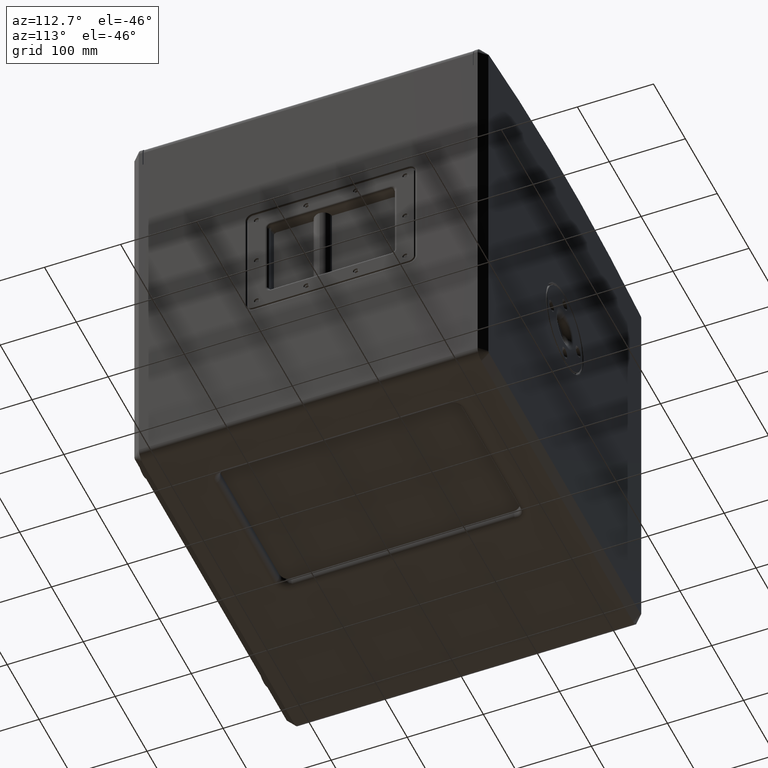
[diagram: clean part render]
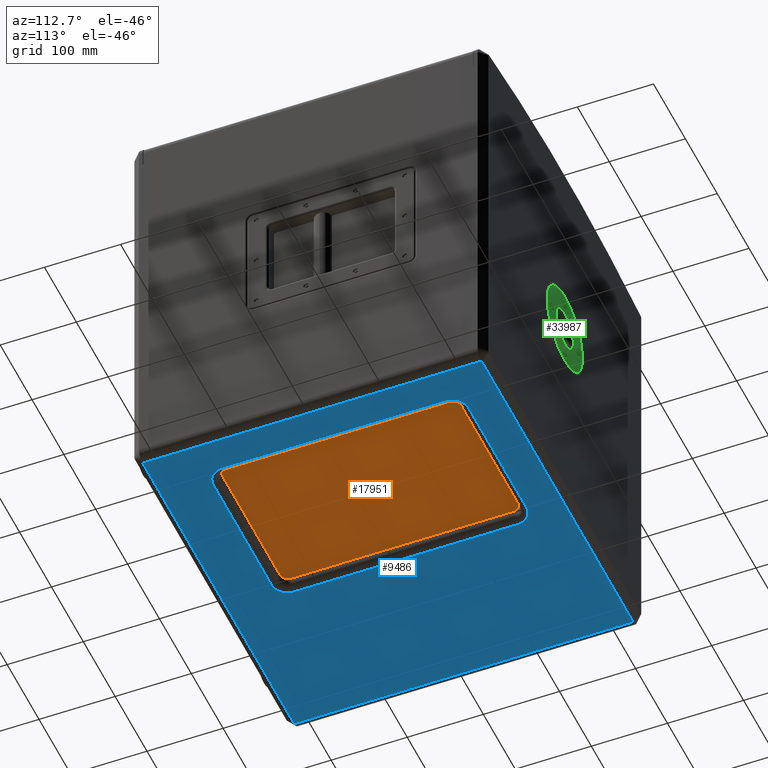
[diagram: same view with three faces highlighted in distinct colors, each labeled with its STEP entity id]
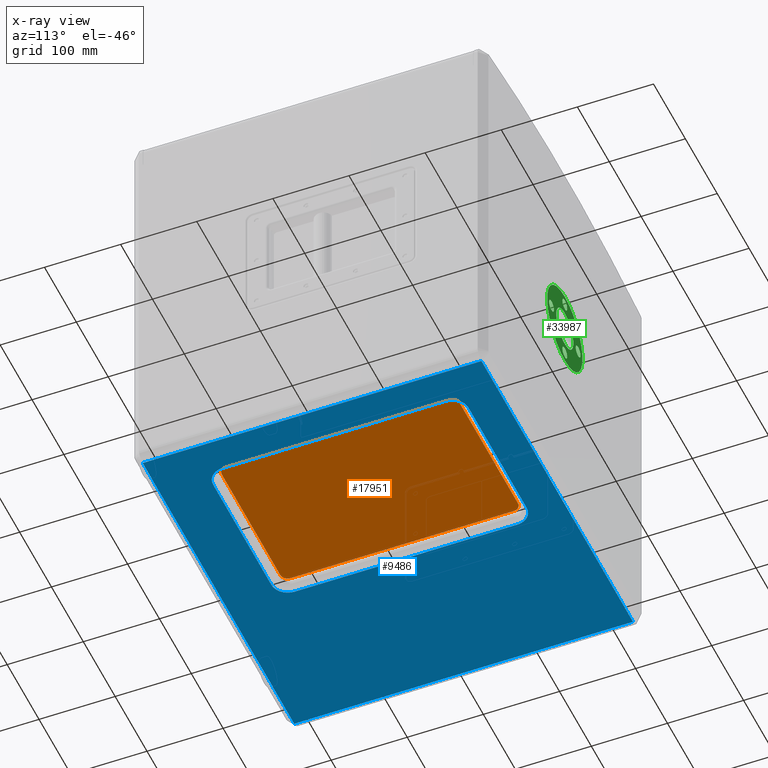
[diagram: x-ray of the same camera — body ghosted, the three highlighted faces saturated]
A machine part, auxiliary view with three faces highlighted in distinct colors.
The next image is the same camera in x-ray (body ghosted, the three faces saturated) — at least one of them is partly hidden behind the body in this view.
Their STEP definitions:

[orange] entity #17951 — the highlighted planar face has unit normal (-0, 0, -1).
#1145 = DIRECTION ( 'NONE',  ( 1.000000000000000000, 0.0000000000000000000, 0.0000000000000000000 ) ) ;
#1428 = AXIS2_PLACEMENT_3D ( 'NONE', #33297, #20532, #3899 ) ;
#3681 = CARTESIAN_POINT ( 'NONE',  ( 171.5000000000000000, 156.2500000000000000, -267.5000000000000000 ) ) ;
#3899 = DIRECTION ( 'NONE',  ( 1.000000000000000000, 0.0000000000000000000, 0.0000000000000000000 ) ) ;
#4521 = AXIS2_PLACEMENT_3D ( 'NONE', #3681, #23325, #36304 ) ;
#4782 = DIRECTION ( 'NONE',  ( 0.0000000000000000000, 0.0000000000000000000, 1.000000000000000000 ) ) ;
#5061 = DIRECTION ( 'NONE',  ( -1.000000000000000000, -0.0000000000000000000, -0.0000000000000000000 ) ) ;
#5260 = CARTESIAN_POINT ( 'NONE',  ( -21.50000000000001776, -136.2499999999999716, -267.5000000000000000 ) ) ;
#5874 = CIRCLE ( 'NONE', #4521, 10.00000000000000888 ) ;
#6078 = AXIS2_PLACEMENT_3D ( 'NONE', #34007, #4782, #25184 ) ;
#6406 = VERTEX_POINT ( 'NONE', #7238 ) ;
#7238 = CARTESIAN_POINT ( 'NONE',  ( 171.5000000000000284, -146.2500000000000000, -267.5000000000000000 ) ) ;
#8075 = LINE ( 'NONE', #8283, #26173 ) ;
#8283 = CARTESIAN_POINT ( 'NONE',  ( -11.50000000000005151, 166.2500000000000000, -267.5000000000000000 ) ) ;
#9828 = EDGE_CURVE ( 'NONE', #6406, #18560, #13819, .T. ) ;
#11342 = CARTESIAN_POINT ( 'NONE',  ( -21.50000000000006040, 156.2500000000000000, -267.5000000000000000 ) ) ;
#11411 = ORIENTED_EDGE ( 'NONE', *, *, #36583, .F. ) ;
#11650 = CIRCLE ( 'NONE', #1428, 10.00000000000000178 ) ;
#12267 = VERTEX_POINT ( 'NONE', #32658 ) ;
#13819 = CIRCLE ( 'NONE', #21954, 9.999999999999980460 ) ;
#14998 = EDGE_CURVE ( 'NONE', #34397, #15215, #21346, .T. ) ;
#15215 = VERTEX_POINT ( 'NONE', #5260 ) ;
#15945 = ORIENTED_EDGE ( 'NONE', *, *, #37341, .F. ) ;
#16144 = VERTEX_POINT ( 'NONE', #21932 ) ;
#16695 = ORIENTED_EDGE ( 'NONE', *, *, #19327, .F. ) ;
#16812 = VECTOR ( 'NONE', #23519, 1000.000000000000000 ) ;
#16907 = AXIS2_PLACEMENT_3D ( 'NONE', #41561, #31575, #38164 ) ;
#17829 = CARTESIAN_POINT ( 'NONE',  ( 181.5000000000000568, -136.2499999999999716, -267.5000000000000000 ) ) ;
#17951 = ADVANCED_FACE ( 'NONE', ( #35396 ), #26027, .T. ) ;
#18560 = VERTEX_POINT ( 'NONE', #17829 ) ;
#19134 = VECTOR ( 'NONE', #33656, 1000.000000000000000 ) ;
#19289 = VECTOR ( 'NONE', #41126, 1000.000000000000000 ) ;
#19327 = EDGE_CURVE ( 'NONE', #16144, #6406, #33442, .T. ) ;
#20532 = DIRECTION ( 'NONE',  ( 0.0000000000000000000, 0.0000000000000000000, 1.000000000000000000 ) ) ;
#20794 = EDGE_CURVE ( 'NONE', #18560, #12267, #26485, .T. ) ;
#21073 = CIRCLE ( 'NONE', #6078, 10.00000000000000178 ) ;
#21346 = LINE ( 'NONE', #11342, #19289 ) ;
#21932 = CARTESIAN_POINT ( 'NONE',  ( -11.50000000000003730, -146.2500000000000000, -267.5000000000000000 ) ) ;
#21954 = AXIS2_PLACEMENT_3D ( 'NONE', #30352, #39910, #1145 ) ;
#22609 = CARTESIAN_POINT ( 'NONE',  ( -11.50000000000005151, 166.2500000000000000, -267.5000000000000000 ) ) ;
#23325 = DIRECTION ( 'NONE',  ( 0.0000000000000000000, 0.0000000000000000000, 1.000000000000000000 ) ) ;
#23519 = DIRECTION ( 'NONE',  ( -1.423362852083534146E-16, 1.000000000000000000, -0.0000000000000000000 ) ) ;
#25184 = DIRECTION ( 'NONE',  ( 1.000000000000000000, 0.0000000000000000000, 0.0000000000000000000 ) ) ;
#26027 = PLANE ( 'NONE',  #16907 ) ;
#26173 = VECTOR ( 'NONE', #5061, 1000.000000000000000 ) ;
#26485 = LINE ( 'NONE', #39468, #16812 ) ;
#27237 = EDGE_CURVE ( 'NONE', #31481, #34397, #21073, .T. ) ;
#28423 = ORIENTED_EDGE ( 'NONE', *, *, #20794, .F. ) ;
#30352 = CARTESIAN_POINT ( 'NONE',  ( 171.5000000000000284, -136.2499999999999716, -267.5000000000000000 ) ) ;
#30841 = ORIENTED_EDGE ( 'NONE', *, *, #14998, .F. ) ;
#31481 = VERTEX_POINT ( 'NONE', #22609 ) ;
#31575 = DIRECTION ( 'NONE',  ( -0.0000000000000000000, 0.0000000000000000000, -1.000000000000000000 ) ) ;
#32658 = CARTESIAN_POINT ( 'NONE',  ( 181.4999999999999716, 156.2500000000000000, -267.5000000000000000 ) ) ;
#32787 = ORIENTED_EDGE ( 'NONE', *, *, #27237, .F. ) ;
#33297 = CARTESIAN_POINT ( 'NONE',  ( -11.50000000000002487, -136.2499999999999716, -267.5000000000000000 ) ) ;
#33442 = LINE ( 'NONE', #36859, #19134 ) ;
#33612 = ORIENTED_EDGE ( 'NONE', *, *, #35452, .F. ) ;
#33656 = DIRECTION ( 'NONE',  ( 1.000000000000000000, 0.0000000000000000000, 0.0000000000000000000 ) ) ;
#34007 = CARTESIAN_POINT ( 'NONE',  ( -11.50000000000006573, 156.2500000000000000, -267.5000000000000000 ) ) ;
#34397 = VERTEX_POINT ( 'NONE', #41958 ) ;
#35396 = FACE_OUTER_BOUND ( 'NONE', #35917, .T. ) ;
#35452 = EDGE_CURVE ( 'NONE', #37027, #31481, #8075, .T. ) ;
#35917 = EDGE_LOOP ( 'NONE', ( #11411, #28423, #37780, #16695, #15945, #30841, #32787, #33612 ) ) ;
#36304 = DIRECTION ( 'NONE',  ( -1.000000000000000000, 0.0000000000000000000, 0.0000000000000000000 ) ) ;
#36583 = EDGE_CURVE ( 'NONE', #12267, #37027, #5874, .T. ) ;
#36859 = CARTESIAN_POINT ( 'NONE',  ( -11.50000000000003730, -146.2500000000000000, -267.5000000000000000 ) ) ;
#37027 = VERTEX_POINT ( 'NONE', #38288 ) ;
#37341 = EDGE_CURVE ( 'NONE', #15215, #16144, #11650, .T. ) ;
#37780 = ORIENTED_EDGE ( 'NONE', *, *, #9828, .F. ) ;
#38164 = DIRECTION ( 'NONE',  ( -1.000000000000000000, 0.0000000000000000000, 0.0000000000000000000 ) ) ;
#38288 = CARTESIAN_POINT ( 'NONE',  ( 171.5000000000000000, 166.2500000000000000, -267.5000000000000000 ) ) ;
#39468 = CARTESIAN_POINT ( 'NONE',  ( 181.4999999999999716, 156.2500000000000000, -267.5000000000000000 ) ) ;
#39910 = DIRECTION ( 'NONE',  ( 0.0000000000000000000, 0.0000000000000000000, 1.000000000000000000 ) ) ;
#41126 = DIRECTION ( 'NONE',  ( 1.423362852083534146E-16, -1.000000000000000000, 0.0000000000000000000 ) ) ;
#41561 = CARTESIAN_POINT ( 'NONE',  ( 171.5000000000000000, 156.2500000000000000, -267.5000000000000000 ) ) ;
#41958 = CARTESIAN_POINT ( 'NONE',  ( -21.50000000000006040, 156.2500000000000000, -267.5000000000000000 ) ) ;

[blue] entity #9486 — the highlighted planar face has unit normal (0, 0, 1).
#33 = VECTOR ( 'NONE', #33356, 1000.000000000000000 ) ;
#43 = DIRECTION ( 'NONE',  ( -1.000000000000000000, 5.551115123125781470E-17, 0.0000000000000000000 ) ) ;
#665 = DIRECTION ( 'NONE',  ( -1.000000000000000000, -0.0000000000000000000, 0.0000000000000000000 ) ) ;
#819 = EDGE_CURVE ( 'NONE', #33499, #40136, #26866, .T. ) ;
#1223 = VECTOR ( 'NONE', #19908, 1000.000000000000000 ) ;
#1708 = ORIENTED_EDGE ( 'NONE', *, *, #31269, .T. ) ;
#2672 = VECTOR ( 'NONE', #665, 1000.000000000000000 ) ;
#2695 = EDGE_CURVE ( 'NONE', #26711, #18295, #36577, .T. ) ;
#2771 = EDGE_CURVE ( 'NONE', #18295, #32316, #4068, .T. ) ;
#3700 = CARTESIAN_POINT ( 'NONE',  ( -238.0000000000000000, 0.0000000000000000000, -279.9999999999999432 ) ) ;
#3831 = LINE ( 'NONE', #10239, #22377 ) ;
#4068 = CIRCLE ( 'NONE', #30624, 21.49999999999996447 ) ;
#4168 = CIRCLE ( 'NONE', #12383, 21.50000000000000355 ) ;
#4516 = CIRCLE ( 'NONE', #24252, 21.50000000000001066 ) ;
#4997 = ORIENTED_EDGE ( 'NONE', *, *, #2771, .T. ) ;
#6562 = DIRECTION ( 'NONE',  ( 1.000000000000000000, 0.0000000000000000000, -0.0000000000000000000 ) ) ;
#6785 = FACE_BOUND ( 'NONE', #40795, .T. ) ;
#6905 = CARTESIAN_POINT ( 'NONE',  ( 193.0000000000000000, 0.0000000000000000000, -279.9999999999999432 ) ) ;
#7086 = CARTESIAN_POINT ( 'NONE',  ( 0.0000000000000000000, 177.7500000000000284, -279.9999999999999432 ) ) ;
#7184 = VERTEX_POINT ( 'NONE', #11700 ) ;
#8299 = DIRECTION ( 'NONE',  ( 1.000000000000000000, 0.0000000000000000000, 0.0000000000000000000 ) ) ;
#8309 = CARTESIAN_POINT ( 'NONE',  ( -33.00000000000004974, -3.131398274583780299E-15, -279.9999999999999432 ) ) ;
#9285 = VERTEX_POINT ( 'NONE', #35841 ) ;
#9486 = ADVANCED_FACE ( 'NONE', ( #6785, #25736 ), #18950, .F. ) ;
#10239 = CARTESIAN_POINT ( 'NONE',  ( -1.235123114895486493E-14, -222.5000000000000284, -279.9999999999999432 ) ) ;
#10950 = DIRECTION ( 'NONE',  ( -0.0000000000000000000, 1.000000000000000000, -0.0000000000000000000 ) ) ;
#11215 = CARTESIAN_POINT ( 'NONE',  ( 171.5000000000000284, -136.2499999999999716, -279.9999999999999432 ) ) ;
#11503 = DIRECTION ( 'NONE',  ( 0.0000000000000000000, 0.0000000000000000000, 1.000000000000000000 ) ) ;
#11700 = CARTESIAN_POINT ( 'NONE',  ( -11.50000000000003908, 177.7500000000000284, -279.9999999999999432 ) ) ;
#11721 = CARTESIAN_POINT ( 'NONE',  ( -11.50000000000002487, -136.2499999999999716, -279.9999999999999432 ) ) ;
#12351 = EDGE_CURVE ( 'NONE', #32316, #33499, #19071, .T. ) ;
#12383 = AXIS2_PLACEMENT_3D ( 'NONE', #14473, #37254, #17900 ) ;
#12592 = ORIENTED_EDGE ( 'NONE', *, *, #21242, .T. ) ;
#12784 = CARTESIAN_POINT ( 'NONE',  ( -238.0000000000000000, 222.5000000000000000, -279.9999999999999432 ) ) ;
#12920 = ORIENTED_EDGE ( 'NONE', *, *, #22093, .T. ) ;
#13879 = EDGE_CURVE ( 'NONE', #13888, #26955, #26922, .T. ) ;
#13888 = VERTEX_POINT ( 'NONE', #16946 ) ;
#14425 = DIRECTION ( 'NONE',  ( 0.0000000000000000000, 0.0000000000000000000, 1.000000000000000000 ) ) ;
#14456 = EDGE_LOOP ( 'NONE', ( #26077, #12920, #40371, #1708 ) ) ;
#14473 = CARTESIAN_POINT ( 'NONE',  ( -11.50000000000006573, 156.2500000000000000, -279.9999999999999432 ) ) ;
#14550 = VERTEX_POINT ( 'NONE', #32959 ) ;
#14949 = ORIENTED_EDGE ( 'NONE', *, *, #27266, .T. ) ;
#16707 = CARTESIAN_POINT ( 'NONE',  ( 0.0000000000000000000, 222.5000000000000000, -279.9999999999999432 ) ) ;
#16946 = CARTESIAN_POINT ( 'NONE',  ( -238.0000000000000000, -222.5000000000000284, -279.9999999999999432 ) ) ;
#17681 = LINE ( 'NONE', #40422, #32019 ) ;
#17900 = DIRECTION ( 'NONE',  ( 1.000000000000000000, 0.0000000000000000000, 0.0000000000000000000 ) ) ;
#18295 = VERTEX_POINT ( 'NONE', #39571 ) ;
#18653 = VERTEX_POINT ( 'NONE', #25983 ) ;
#18950 = PLANE ( 'NONE',  #34268 ) ;
#19071 = LINE ( 'NONE', #6905, #1223 ) ;
#19284 = VERTEX_POINT ( 'NONE', #41152 ) ;
#19908 = DIRECTION ( 'NONE',  ( -0.0000000000000000000, 1.000000000000000000, -0.0000000000000000000 ) ) ;
#20093 = LINE ( 'NONE', #16707, #21793 ) ;
#20143 = EDGE_CURVE ( 'NONE', #14550, #26711, #4516, .T. ) ;
#20237 = VECTOR ( 'NONE', #21301, 1000.000000000000000 ) ;
#20396 = CARTESIAN_POINT ( 'NONE',  ( 4.785182571984108433E-14, -157.7500000000000000, -279.9999999999999432 ) ) ;
#20639 = DIRECTION ( 'NONE',  ( 1.193788198521673625E-16, -1.000000000000000000, -0.0000000000000000000 ) ) ;
#21047 = ORIENTED_EDGE ( 'NONE', *, *, #2695, .T. ) ;
#21242 = EDGE_CURVE ( 'NONE', #19284, #14550, #37478, .T. ) ;
#21301 = DIRECTION ( 'NONE',  ( 9.489085680556895541E-17, -1.000000000000000000, -0.0000000000000000000 ) ) ;
#21470 = CARTESIAN_POINT ( 'NONE',  ( -11.50000000000004974, -157.7500000000000000, -279.9999999999999432 ) ) ;
#21700 = ORIENTED_EDGE ( 'NONE', *, *, #819, .T. ) ;
#21793 = VECTOR ( 'NONE', #29676, 1000.000000000000000 ) ;
#22093 = EDGE_CURVE ( 'NONE', #9285, #13888, #3831, .T. ) ;
#22377 = VECTOR ( 'NONE', #43, 1000.000000000000000 ) ;
#22380 = ORIENTED_EDGE ( 'NONE', *, *, #12351, .T. ) ;
#24153 = VECTOR ( 'NONE', #10950, 1000.000000000000000 ) ;
#24252 = AXIS2_PLACEMENT_3D ( 'NONE', #11721, #11503, #8299 ) ;
#24823 = ORIENTED_EDGE ( 'NONE', *, *, #29853, .T. ) ;
#25526 = DIRECTION ( 'NONE',  ( 0.0000000000000000000, 0.0000000000000000000, 1.000000000000000000 ) ) ;
#25736 = FACE_OUTER_BOUND ( 'NONE', #14456, .T. ) ;
#25954 = CARTESIAN_POINT ( 'NONE',  ( 0.0000000000000000000, 0.0000000000000000000, -279.9999999999999432 ) ) ;
#25983 = CARTESIAN_POINT ( 'NONE',  ( 238.0000000000000568, 222.5000000000000000, -279.9999999999999432 ) ) ;
#26077 = ORIENTED_EDGE ( 'NONE', *, *, #29259, .T. ) ;
#26711 = VERTEX_POINT ( 'NONE', #21470 ) ;
#26866 = CIRCLE ( 'NONE', #35066, 21.50000000000001776 ) ;
#26922 = LINE ( 'NONE', #3700, #24153 ) ;
#26955 = VERTEX_POINT ( 'NONE', #12784 ) ;
#27266 = EDGE_CURVE ( 'NONE', #40136, #7184, #37398, .T. ) ;
#27389 = DIRECTION ( 'NONE',  ( 1.000000000000000000, 0.0000000000000000000, 0.0000000000000000000 ) ) ;
#29259 = EDGE_CURVE ( 'NONE', #18653, #9285, #17681, .T. ) ;
#29676 = DIRECTION ( 'NONE',  ( 1.000000000000000000, 0.0000000000000000000, 0.0000000000000000000 ) ) ;
#29853 = EDGE_CURVE ( 'NONE', #7184, #19284, #4168, .T. ) ;
#30624 = AXIS2_PLACEMENT_3D ( 'NONE', #11215, #14425, #27389 ) ;
#31269 = EDGE_CURVE ( 'NONE', #26955, #18653, #20093, .T. ) ;
#32019 = VECTOR ( 'NONE', #20639, 1000.000000000000000 ) ;
#32316 = VERTEX_POINT ( 'NONE', #33539 ) ;
#32959 = CARTESIAN_POINT ( 'NONE',  ( -33.00000000000003553, -136.2499999999999716, -279.9999999999999432 ) ) ;
#33356 = DIRECTION ( 'NONE',  ( 1.000000000000000000, 3.033396242145235380E-16, -0.0000000000000000000 ) ) ;
#33499 = VERTEX_POINT ( 'NONE', #37272 ) ;
#33539 = CARTESIAN_POINT ( 'NONE',  ( 193.0000000000000000, -136.2499999999999716, -279.9999999999999432 ) ) ;
#33829 = DIRECTION ( 'NONE',  ( 1.000000000000000000, 0.0000000000000000000, 0.0000000000000000000 ) ) ;
#34043 = CARTESIAN_POINT ( 'NONE',  ( 171.5000000000000000, 156.2500000000000000, -279.9999999999999432 ) ) ;
#34268 = AXIS2_PLACEMENT_3D ( 'NONE', #25954, #25526, #6562 ) ;
#35066 = AXIS2_PLACEMENT_3D ( 'NONE', #34043, #40629, #33829 ) ;
#35841 = CARTESIAN_POINT ( 'NONE',  ( 238.0000000000001137, -222.5000000000000568, -279.9999999999999432 ) ) ;
#36121 = CARTESIAN_POINT ( 'NONE',  ( 171.5000000000000000, 177.7500000000000284, -279.9999999999999432 ) ) ;
#36577 = LINE ( 'NONE', #20396, #33 ) ;
#37254 = DIRECTION ( 'NONE',  ( 0.0000000000000000000, 0.0000000000000000000, 1.000000000000000000 ) ) ;
#37272 = CARTESIAN_POINT ( 'NONE',  ( 193.0000000000000000, 156.2500000000000000, -279.9999999999999432 ) ) ;
#37398 = LINE ( 'NONE', #7086, #2672 ) ;
#37478 = LINE ( 'NONE', #8309, #20237 ) ;
#39571 = CARTESIAN_POINT ( 'NONE',  ( 171.5000000000000284, -157.7499999999999432, -279.9999999999999432 ) ) ;
#40136 = VERTEX_POINT ( 'NONE', #36121 ) ;
#40371 = ORIENTED_EDGE ( 'NONE', *, *, #13879, .T. ) ;
#40422 = CARTESIAN_POINT ( 'NONE',  ( 238.0000000000000853, 2.841215912481583958E-14, -279.9999999999999432 ) ) ;
#40629 = DIRECTION ( 'NONE',  ( 0.0000000000000000000, 0.0000000000000000000, 1.000000000000000000 ) ) ;
#40795 = EDGE_LOOP ( 'NONE', ( #14949, #24823, #12592, #41920, #21047, #4997, #22380, #21700 ) ) ;
#41152 = CARTESIAN_POINT ( 'NONE',  ( -33.00000000000006395, 156.2500000000000000, -279.9999999999999432 ) ) ;
#41920 = ORIENTED_EDGE ( 'NONE', *, *, #20143, .T. ) ;

[green] entity #33987 — the highlighted planar face has unit normal (0, -1, 0).
#23 = CARTESIAN_POINT ( 'NONE',  ( -2.922371573248552689E-13, 232.5000000000000000, 41.85000000000000142 ) ) ;
#781 = EDGE_CURVE ( 'NONE', #13141, #33860, #2386, .T. ) ;
#1318 = AXIS2_PLACEMENT_3D ( 'NONE', #23, #16237, #3391 ) ;
#1402 = VERTEX_POINT ( 'NONE', #30698 ) ;
#1577 = DIRECTION ( 'NONE',  ( 2.021071745467879288E-50, 0.0000000000000000000, -1.000000000000000000 ) ) ;
#1714 = FACE_BOUND ( 'NONE', #15972, .T. ) ;
#2223 = DIRECTION ( 'NONE',  ( 2.021071745467879288E-50, 0.0000000000000000000, -1.000000000000000000 ) ) ;
#2327 = AXIS2_PLACEMENT_3D ( 'NONE', #29245, #29654, #10252 ) ;
#2386 = CIRCLE ( 'NONE', #40450, 7.500000000000062172 ) ;
#2665 = CARTESIAN_POINT ( 'NONE',  ( -41.85000000000000142, 232.5000000000000000, -4.383557359872829285E-13 ) ) ;
#3326 = AXIS2_PLACEMENT_3D ( 'NONE', #2665, #8836, #8434 ) ;
#3391 = DIRECTION ( 'NONE',  ( 0.0000000000000000000, 0.0000000000000000000, -1.000000000000000000 ) ) ;
#3867 = AXIS2_PLACEMENT_3D ( 'NONE', #28165, #40733, #14783 ) ;
#5163 = CARTESIAN_POINT ( 'NONE',  ( 3.275930187719170341E-15, 232.5000000000000000, 26.75000000000000355 ) ) ;
#5710 = EDGE_CURVE ( 'NONE', #33400, #28630, #21220, .T. ) ;
#6636 = ORIENTED_EDGE ( 'NONE', *, *, #40021, .T. ) ;
#6828 = CARTESIAN_POINT ( 'NONE',  ( -41.85000000000000142, 232.5000000000000000, -7.500000000000487610 ) ) ;
#7905 = ORIENTED_EDGE ( 'NONE', *, *, #30758, .T. ) ;
#8343 = DIRECTION ( 'NONE',  ( 0.0000000000000000000, 0.0000000000000000000, -1.000000000000000000 ) ) ;
#8434 = DIRECTION ( 'NONE',  ( 0.0000000000000000000, 0.0000000000000000000, -1.000000000000000000 ) ) ;
#8836 = DIRECTION ( 'NONE',  ( 2.465190328815661892E-32, -1.000000000000000000, 5.247002237433186112E-18 ) ) ;
#8950 = AXIS2_PLACEMENT_3D ( 'NONE', #12265, #28862, #2223 ) ;
#9024 = CARTESIAN_POINT ( 'NONE',  ( 3.001954660558042140E-46, 232.5000000000000000, -34.34999999999995168 ) ) ;
#9771 = AXIS2_PLACEMENT_3D ( 'NONE', #28278, #25515, #38283 ) ;
#10053 = AXIS2_PLACEMENT_3D ( 'NONE', #13340, #26737, #1577 ) ;
#10252 = DIRECTION ( 'NONE',  ( 0.0000000000000000000, 0.0000000000000000000, -1.000000000000000000 ) ) ;
#10583 = DIRECTION ( 'NONE',  ( 2.021071745467878813E-50, 0.0000000000000000000, -1.000000000000000000 ) ) ;
#11609 = CARTESIAN_POINT ( 'NONE',  ( -2.922371573248552689E-13, 232.5000000000000000, 49.35000000000004405 ) ) ;
#11882 = EDGE_CURVE ( 'NONE', #28630, #33400, #20941, .T. ) ;
#12220 = ORIENTED_EDGE ( 'NONE', *, *, #14181, .T. ) ;
#12265 = CARTESIAN_POINT ( 'NONE',  ( 0.0000000000000000000, 232.5000000000000000, 0.0000000000000000000 ) ) ;
#12476 = VERTEX_POINT ( 'NONE', #14972 ) ;
#12879 = VERTEX_POINT ( 'NONE', #33579 ) ;
#13141 = VERTEX_POINT ( 'NONE', #23745 ) ;
#13340 = CARTESIAN_POINT ( 'NONE',  ( 0.0000000000000000000, 232.5000000000000000, 0.0000000000000000000 ) ) ;
#13743 = AXIS2_PLACEMENT_3D ( 'NONE', #34121, #30718, #8343 ) ;
#14181 = EDGE_CURVE ( 'NONE', #12879, #32937, #19867, .T. ) ;
#14251 = CARTESIAN_POINT ( 'NONE',  ( 8.458185254783074290E-49, 232.5000000000000000, -41.85000000000000142 ) ) ;
#14363 = ORIENTED_EDGE ( 'NONE', *, *, #5710, .T. ) ;
#14751 = FACE_BOUND ( 'NONE', #24279, .T. ) ;
#14783 = DIRECTION ( 'NONE',  ( 0.0000000000000000000, 0.0000000000000000000, -1.000000000000000000 ) ) ;
#14956 = FACE_BOUND ( 'NONE', #34143, .T. ) ;
#14972 = CARTESIAN_POINT ( 'NONE',  ( 41.85000000000000142, 232.5000000000000000, -7.499999999999903189 ) ) ;
#15972 = EDGE_LOOP ( 'NONE', ( #38466, #23408 ) ) ;
#16040 = CARTESIAN_POINT ( 'NONE',  ( 41.85000000000000142, 232.5000000000000000, 7.500000000000194511 ) ) ;
#16237 = DIRECTION ( 'NONE',  ( 2.465190328815661892E-32, -1.000000000000000000, 5.247002237433186112E-18 ) ) ;
#16727 = EDGE_CURVE ( 'NONE', #29138, #1402, #33634, .T. ) ;
#17450 = ORIENTED_EDGE ( 'NONE', *, *, #26082, .T. ) ;
#17644 = DIRECTION ( 'NONE',  ( 2.465190328815661892E-32, -1.000000000000000000, 5.247002237433186112E-18 ) ) ;
#19867 = CIRCLE ( 'NONE', #13743, 7.500000000000062172 ) ;
#20788 = CARTESIAN_POINT ( 'NONE',  ( 0.0000000000000000000, 232.5000000000000000, 0.0000000000000000000 ) ) ;
#20941 = CIRCLE ( 'NONE', #10053, 55.49999999999999289 ) ;
#21220 = CIRCLE ( 'NONE', #8950, 55.49999999999999289 ) ;
#21982 = ORIENTED_EDGE ( 'NONE', *, *, #781, .T. ) ;
#22136 = CARTESIAN_POINT ( 'NONE',  ( -41.85000000000000142, 232.5000000000000000, -4.383557359872829285E-13 ) ) ;
#22437 = EDGE_CURVE ( 'NONE', #35212, #29822, #34629, .T. ) ;
#22853 = ORIENTED_EDGE ( 'NONE', *, *, #22437, .T. ) ;
#22948 = CIRCLE ( 'NONE', #3867, 7.500000000000061284 ) ;
#23408 = ORIENTED_EDGE ( 'NONE', *, *, #26193, .T. ) ;
#23528 = DIRECTION ( 'NONE',  ( 2.465190328815661892E-32, -1.000000000000000000, 5.247002237433186112E-18 ) ) ;
#23745 = CARTESIAN_POINT ( 'NONE',  ( 9.184850993605209081E-16, 232.5000000000000000, -49.35000000000004405 ) ) ;
#24168 = CARTESIAN_POINT ( 'NONE',  ( -41.85000000000000142, 232.5000000000000000, 7.499999999999611866 ) ) ;
#24279 = EDGE_LOOP ( 'NONE', ( #22853, #6636 ) ) ;
#25499 = AXIS2_PLACEMENT_3D ( 'NONE', #20788, #36559, #30174 ) ;
#25515 = DIRECTION ( 'NONE',  ( 2.465190328815661892E-32, -1.000000000000000000, 5.247002237433186112E-18 ) ) ;
#25737 = EDGE_LOOP ( 'NONE', ( #27788, #14363 ) ) ;
#26082 = EDGE_CURVE ( 'NONE', #1402, #29138, #30453, .T. ) ;
#26193 = EDGE_CURVE ( 'NONE', #12476, #40824, #22948, .T. ) ;
#26336 = AXIS2_PLACEMENT_3D ( 'NONE', #40092, #23528, #26698 ) ;
#26698 = DIRECTION ( 'NONE',  ( 2.021071745467879525E-50, 0.0000000000000000000, -1.000000000000000000 ) ) ;
#26737 = DIRECTION ( 'NONE',  ( -2.465190328815661892E-32, 1.000000000000000000, -5.247002237433186112E-18 ) ) ;
#27188 = CARTESIAN_POINT ( 'NONE',  ( 8.458185254783074290E-49, 232.5000000000000000, -41.85000000000000142 ) ) ;
#27332 = EDGE_LOOP ( 'NONE', ( #36808, #21982 ) ) ;
#27788 = ORIENTED_EDGE ( 'NONE', *, *, #11882, .T. ) ;
#27874 = CIRCLE ( 'NONE', #38765, 7.500000000000062172 ) ;
#27876 = CIRCLE ( 'NONE', #1318, 7.500000000000062172 ) ;
#27924 = FACE_OUTER_BOUND ( 'NONE', #25737, .T. ) ;
#28165 = CARTESIAN_POINT ( 'NONE',  ( 41.85000000000000142, 232.5000000000000000, 1.461185786624276344E-13 ) ) ;
#28278 = CARTESIAN_POINT ( 'NONE',  ( 0.0000000000000000000, 232.5000000000000000, 0.0000000000000000000 ) ) ;
#28485 = PLANE ( 'NONE',  #9771 ) ;
#28628 = EDGE_CURVE ( 'NONE', #33860, #13141, #27874, .T. ) ;
#28630 = VERTEX_POINT ( 'NONE', #40175 ) ;
#28862 = DIRECTION ( 'NONE',  ( -2.465190328815661892E-32, 1.000000000000000000, -5.247002237433186112E-18 ) ) ;
#29138 = VERTEX_POINT ( 'NONE', #5163 ) ;
#29245 = CARTESIAN_POINT ( 'NONE',  ( 41.85000000000000142, 232.5000000000000000, 1.461185786624276344E-13 ) ) ;
#29654 = DIRECTION ( 'NONE',  ( 2.465190328815661892E-32, -1.000000000000000000, 5.247002237433186112E-18 ) ) ;
#29737 = DIRECTION ( 'NONE',  ( 0.0000000000000000000, 0.0000000000000000000, -1.000000000000000000 ) ) ;
#29822 = VERTEX_POINT ( 'NONE', #6828 ) ;
#30174 = DIRECTION ( 'NONE',  ( 2.021071745467879525E-50, 0.0000000000000000000, -1.000000000000000000 ) ) ;
#30224 = DIRECTION ( 'NONE',  ( 2.021071745467878813E-50, 0.0000000000000000000, -1.000000000000000000 ) ) ;
#30453 = CIRCLE ( 'NONE', #26336, 26.75000000000000355 ) ;
#30698 = CARTESIAN_POINT ( 'NONE',  ( 2.703183459563289067E-49, 232.5000000000000000, -26.75000000000000355 ) ) ;
#30718 = DIRECTION ( 'NONE',  ( 2.465190328815661892E-32, -1.000000000000000000, 5.247002237433186112E-18 ) ) ;
#30758 = EDGE_CURVE ( 'NONE', #32937, #12879, #27876, .T. ) ;
#31335 = FACE_BOUND ( 'NONE', #27332, .T. ) ;
#32367 = EDGE_LOOP ( 'NONE', ( #17450, #40099 ) ) ;
#32937 = VERTEX_POINT ( 'NONE', #11609 ) ;
#33400 = VERTEX_POINT ( 'NONE', #38997 ) ;
#33579 = CARTESIAN_POINT ( 'NONE',  ( -2.913186722254947679E-13, 232.5000000000000000, 34.34999999999995168 ) ) ;
#33606 = CIRCLE ( 'NONE', #39057, 7.500000000000062172 ) ;
#33634 = CIRCLE ( 'NONE', #25499, 26.75000000000000355 ) ;
#33860 = VERTEX_POINT ( 'NONE', #9024 ) ;
#33987 = ADVANCED_FACE ( 'NONE', ( #27924, #14956, #1714, #14751, #31335, #34324 ), #28485, .F. ) ;
#34121 = CARTESIAN_POINT ( 'NONE',  ( -2.922371573248552689E-13, 232.5000000000000000, 41.85000000000000142 ) ) ;
#34143 = EDGE_LOOP ( 'NONE', ( #7905, #12220 ) ) ;
#34166 = EDGE_CURVE ( 'NONE', #40824, #12476, #39066, .T. ) ;
#34324 = FACE_BOUND ( 'NONE', #32367, .T. ) ;
#34629 = CIRCLE ( 'NONE', #3326, 7.500000000000062172 ) ;
#35212 = VERTEX_POINT ( 'NONE', #24168 ) ;
#36559 = DIRECTION ( 'NONE',  ( 2.465190328815661892E-32, -1.000000000000000000, 5.247002237433186112E-18 ) ) ;
#36808 = ORIENTED_EDGE ( 'NONE', *, *, #28628, .T. ) ;
#38096 = DIRECTION ( 'NONE',  ( 2.465190328815661892E-32, -1.000000000000000000, 5.247002237433186112E-18 ) ) ;
#38283 = DIRECTION ( 'NONE',  ( 2.021071745467879288E-50, -5.247002237433186112E-18, -1.000000000000000000 ) ) ;
#38466 = ORIENTED_EDGE ( 'NONE', *, *, #34166, .T. ) ;
#38765 = AXIS2_PLACEMENT_3D ( 'NONE', #27188, #17644, #10583 ) ;
#38997 = CARTESIAN_POINT ( 'NONE',  ( 6.827405905246493187E-15, 232.5000000000000000, 55.49999999999999289 ) ) ;
#39057 = AXIS2_PLACEMENT_3D ( 'NONE', #22136, #38096, #29737 ) ;
#39066 = CIRCLE ( 'NONE', #2327, 7.500000000000061284 ) ;
#40021 = EDGE_CURVE ( 'NONE', #29822, #35212, #33606, .T. ) ;
#40092 = CARTESIAN_POINT ( 'NONE',  ( 0.0000000000000000000, 232.5000000000000000, 0.0000000000000000000 ) ) ;
#40099 = ORIENTED_EDGE ( 'NONE', *, *, #16727, .T. ) ;
#40175 = CARTESIAN_POINT ( 'NONE',  ( 1.121694818734672819E-48, 232.5000000000000000, -55.49999999999999289 ) ) ;
#40413 = DIRECTION ( 'NONE',  ( 2.465190328815661892E-32, -1.000000000000000000, 5.247002237433186112E-18 ) ) ;
#40450 = AXIS2_PLACEMENT_3D ( 'NONE', #14251, #40413, #30224 ) ;
#40733 = DIRECTION ( 'NONE',  ( 2.465190328815661892E-32, -1.000000000000000000, 5.247002237433186112E-18 ) ) ;
#40824 = VERTEX_POINT ( 'NONE', #16040 ) ;